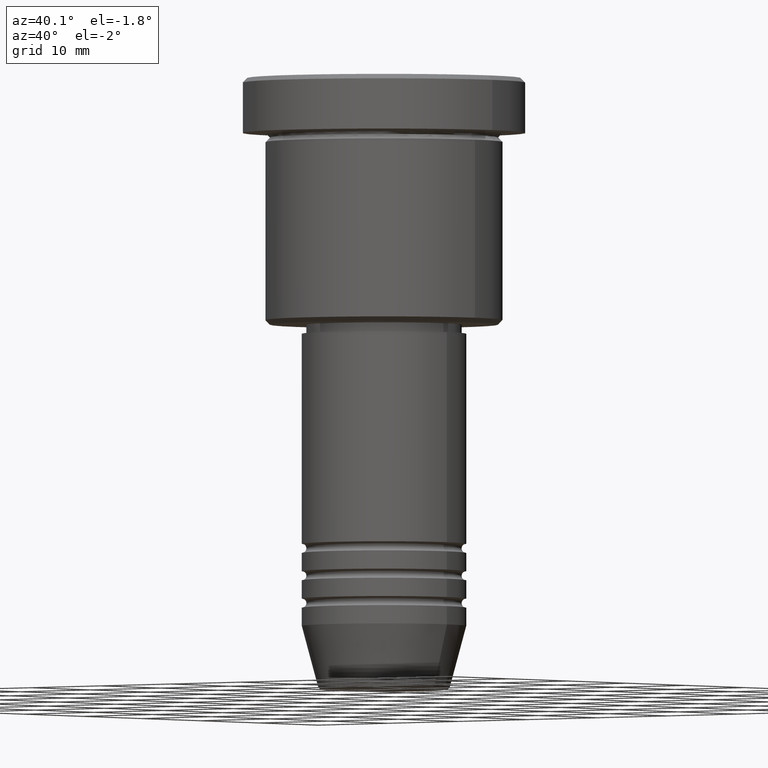
[diagram: clean part render]
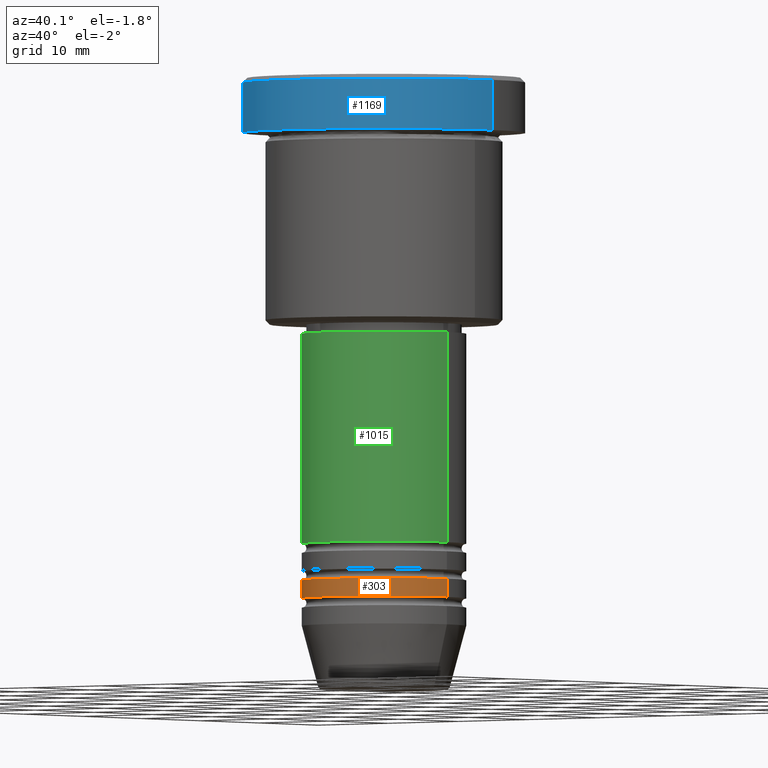
[diagram: same view with three faces highlighted in distinct colors, each labeled with its STEP entity id]
A machine part, auxiliary view with three faces highlighted in distinct colors.
Their STEP definitions:

[orange] entity #303 — the highlighted cylindrical surface (partial cylindrical patch) has radius 9 mm, axis along (-0, -0, 1).
#13 = DIRECTION ( 'NONE',  ( -0.000000000000000000, -0.000000000000000000, 1.000000000000000000 ) ) ;
#38 = CARTESIAN_POINT ( 'NONE',  ( 9.000000000000000000, 0.000000000000000000, -56.99999999999997868 ) ) ;
#57 = VECTOR ( 'NONE', #216, 1000.000000000000000 ) ;
#69 = CARTESIAN_POINT ( 'NONE',  ( 0.000000000000000000, 0.000000000000000000, -54.99999999999997868 ) ) ;
#154 = CARTESIAN_POINT ( 'NONE',  ( -9.000000000000000000, 1.102182119232617714E-15, -56.99999999999997868 ) ) ;
#156 = DIRECTION ( 'NONE',  ( 1.000000000000000000, 0.000000000000000000, 0.000000000000000000 ) ) ;
#216 = DIRECTION ( 'NONE',  ( -0.000000000000000000, -0.000000000000000000, 1.000000000000000000 ) ) ;
#242 = AXIS2_PLACEMENT_3D ( 'NONE', #731, #545, #894 ) ;
#249 = CARTESIAN_POINT ( 'NONE',  ( 9.000000000000000000, 0.000000000000000000, -54.99999999999997868 ) ) ;
#299 = CIRCLE ( 'NONE', #916, 9.000000000000000000 ) ;
#303 = ADVANCED_FACE ( 'NONE', ( #617 ), #526, .T. ) ;
#374 = DIRECTION ( 'NONE',  ( 1.000000000000000000, 0.000000000000000000, 0.000000000000000000 ) ) ;
#425 = EDGE_CURVE ( 'NONE', #751, #1172, #639, .T. ) ;
#510 = CARTESIAN_POINT ( 'NONE',  ( -9.000000000000000000, 1.102182119232617714E-15, 0.000000000000000000 ) ) ;
#526 = CYLINDRICAL_SURFACE ( 'NONE', #242, 9.000000000000000000 ) ;
#542 = ORIENTED_EDGE ( 'NONE', *, *, #425, .T. ) ;
#545 = DIRECTION ( 'NONE',  ( -0.000000000000000000, -0.000000000000000000, 1.000000000000000000 ) ) ;
#546 = ORIENTED_EDGE ( 'NONE', *, *, #556, .F. ) ;
#555 = DIRECTION ( 'NONE',  ( -0.000000000000000000, -0.000000000000000000, 1.000000000000000000 ) ) ;
#556 = EDGE_CURVE ( 'NONE', #1152, #920, #1055, .T. ) ;
#609 = EDGE_CURVE ( 'NONE', #920, #1172, #674, .T. ) ;
#617 = FACE_OUTER_BOUND ( 'NONE', #661, .T. ) ;
#639 = LINE ( 'NONE', #810, #1044 ) ;
#660 = EDGE_CURVE ( 'NONE', #1152, #751, #299, .T. ) ;
#661 = EDGE_LOOP ( 'NONE', ( #546, #1057, #542, #1170 ) ) ;
#674 = CIRCLE ( 'NONE', #938, 9.000000000000000000 ) ;
#731 = CARTESIAN_POINT ( 'NONE',  ( 0.000000000000000000, 0.000000000000000000, 0.000000000000000000 ) ) ;
#751 = VERTEX_POINT ( 'NONE', #38 ) ;
#810 = CARTESIAN_POINT ( 'NONE',  ( 9.000000000000000000, 0.000000000000000000, 0.000000000000000000 ) ) ;
#894 = DIRECTION ( 'NONE',  ( 1.000000000000000000, 0.000000000000000000, 0.000000000000000000 ) ) ;
#916 = AXIS2_PLACEMENT_3D ( 'NONE', #1010, #13, #374 ) ;
#920 = VERTEX_POINT ( 'NONE', #1096 ) ;
#938 = AXIS2_PLACEMENT_3D ( 'NONE', #69, #555, #156 ) ;
#1010 = CARTESIAN_POINT ( 'NONE',  ( 0.000000000000000000, 0.000000000000000000, -56.99999999999997868 ) ) ;
#1044 = VECTOR ( 'NONE', #1066, 1000.000000000000000 ) ;
#1055 = LINE ( 'NONE', #510, #57 ) ;
#1057 = ORIENTED_EDGE ( 'NONE', *, *, #660, .T. ) ;
#1066 = DIRECTION ( 'NONE',  ( -0.000000000000000000, -0.000000000000000000, 1.000000000000000000 ) ) ;
#1096 = CARTESIAN_POINT ( 'NONE',  ( -9.000000000000000000, 1.102182119232617714E-15, -54.99999999999997868 ) ) ;
#1152 = VERTEX_POINT ( 'NONE', #154 ) ;
#1170 = ORIENTED_EDGE ( 'NONE', *, *, #609, .F. ) ;
#1172 = VERTEX_POINT ( 'NONE', #249 ) ;

[blue] entity #1169 — the highlighted cylindrical surface (partial cylindrical patch) has radius 15.5 mm, axis along (-0, -0, 1).
#14 = VERTEX_POINT ( 'NONE', #1018 ) ;
#111 = EDGE_CURVE ( 'NONE', #926, #14, #725, .T. ) ;
#182 = CARTESIAN_POINT ( 'NONE',  ( 15.50000000000000000, 0.000000000000000000, -0.5000000000000057732 ) ) ;
#197 = EDGE_CURVE ( 'NONE', #1042, #926, #603, .T. ) ;
#219 = ORIENTED_EDGE ( 'NONE', *, *, #220, .F. ) ;
#220 = EDGE_CURVE ( 'NONE', #734, #14, #1138, .T. ) ;
#225 = FACE_OUTER_BOUND ( 'NONE', #565, .T. ) ;
#238 = DIRECTION ( 'NONE',  ( -0.000000000000000000, -0.000000000000000000, 1.000000000000000000 ) ) ;
#257 = DIRECTION ( 'NONE',  ( 1.000000000000000000, 0.000000000000000000, 0.000000000000000000 ) ) ;
#308 = CARTESIAN_POINT ( 'NONE',  ( 0.000000000000000000, 0.000000000000000000, -0.5000000000000057732 ) ) ;
#328 = DIRECTION ( 'NONE',  ( -0.000000000000000000, -0.000000000000000000, 1.000000000000000000 ) ) ;
#335 = CYLINDRICAL_SURFACE ( 'NONE', #799, 15.50000000000000000 ) ;
#385 = ORIENTED_EDGE ( 'NONE', *, *, #197, .T. ) ;
#414 = DIRECTION ( 'NONE',  ( -0.000000000000000000, -0.000000000000000000, 1.000000000000000000 ) ) ;
#422 = DIRECTION ( 'NONE',  ( 0.000000000000000000, 0.000000000000000000, -1.000000000000000000 ) ) ;
#477 = VECTOR ( 'NONE', #414, 1000.000000000000000 ) ;
#494 = CARTESIAN_POINT ( 'NONE',  ( 15.50000000000000000, 0.000000000000000000, 0.000000000000000000 ) ) ;
#565 = EDGE_LOOP ( 'NONE', ( #219, #765, #385, #655 ) ) ;
#603 = LINE ( 'NONE', #494, #477 ) ;
#655 = ORIENTED_EDGE ( 'NONE', *, *, #111, .T. ) ;
#662 = CARTESIAN_POINT ( 'NONE',  ( -15.50000000000000000, 1.898202538678397557E-15, -5.999999999999995559 ) ) ;
#672 = AXIS2_PLACEMENT_3D ( 'NONE', #1085, #1077, #257 ) ;
#681 = CARTESIAN_POINT ( 'NONE',  ( -15.50000000000000000, 1.898202538678397557E-15, 0.000000000000000000 ) ) ;
#725 = CIRCLE ( 'NONE', #883, 15.50000000000000000 ) ;
#734 = VERTEX_POINT ( 'NONE', #662 ) ;
#746 = CIRCLE ( 'NONE', #672, 15.50000000000000000 ) ;
#765 = ORIENTED_EDGE ( 'NONE', *, *, #905, .T. ) ;
#799 = AXIS2_PLACEMENT_3D ( 'NONE', #1048, #328, #950 ) ;
#883 = AXIS2_PLACEMENT_3D ( 'NONE', #308, #422, #890 ) ;
#890 = DIRECTION ( 'NONE',  ( 1.000000000000000000, 0.000000000000000000, 0.000000000000000000 ) ) ;
#905 = EDGE_CURVE ( 'NONE', #734, #1042, #746, .T. ) ;
#926 = VERTEX_POINT ( 'NONE', #182 ) ;
#930 = CARTESIAN_POINT ( 'NONE',  ( 15.50000000000000000, 0.000000000000000000, -5.999999999999995559 ) ) ;
#950 = DIRECTION ( 'NONE',  ( 1.000000000000000000, 0.000000000000000000, 0.000000000000000000 ) ) ;
#1018 = CARTESIAN_POINT ( 'NONE',  ( -15.50000000000000000, 1.898202538678397557E-15, -0.5000000000000057732 ) ) ;
#1042 = VERTEX_POINT ( 'NONE', #930 ) ;
#1048 = CARTESIAN_POINT ( 'NONE',  ( 0.000000000000000000, 0.000000000000000000, 0.000000000000000000 ) ) ;
#1077 = DIRECTION ( 'NONE',  ( -0.000000000000000000, -0.000000000000000000, 1.000000000000000000 ) ) ;
#1085 = CARTESIAN_POINT ( 'NONE',  ( 0.000000000000000000, 0.000000000000000000, -5.999999999999995559 ) ) ;
#1127 = VECTOR ( 'NONE', #238, 1000.000000000000000 ) ;
#1138 = LINE ( 'NONE', #681, #1127 ) ;
#1169 = ADVANCED_FACE ( 'NONE', ( #225 ), #335, .T. ) ;

[green] entity #1015 — the highlighted cylindrical surface (partial cylindrical patch) has radius 9 mm, axis along (-0, -0, 1).
#23 = ORIENTED_EDGE ( 'NONE', *, *, #618, .F. ) ;
#60 = AXIS2_PLACEMENT_3D ( 'NONE', #121, #1012, #848 ) ;
#63 = EDGE_CURVE ( 'NONE', #539, #713, #1122, .T. ) ;
#106 = VERTEX_POINT ( 'NONE', #949 ) ;
#116 = VECTOR ( 'NONE', #742, 1000.000000000000000 ) ;
#121 = CARTESIAN_POINT ( 'NONE',  ( 0.000000000000000000, 0.000000000000000000, 0.000000000000000000 ) ) ;
#146 = EDGE_CURVE ( 'NONE', #106, #539, #188, .T. ) ;
#152 = AXIS2_PLACEMENT_3D ( 'NONE', #675, #952, #561 ) ;
#188 = CIRCLE ( 'NONE', #515, 9.000000000000000000 ) ;
#205 = FACE_OUTER_BOUND ( 'NONE', #984, .T. ) ;
#222 = CARTESIAN_POINT ( 'NONE',  ( 9.000000000000000000, 0.000000000000000000, -50.99999999999997868 ) ) ;
#361 = CIRCLE ( 'NONE', #152, 9.000000000000000000 ) ;
#369 = CARTESIAN_POINT ( 'NONE',  ( -9.000000000000000000, 1.102182119232617714E-15, 0.000000000000000000 ) ) ;
#407 = DIRECTION ( 'NONE',  ( 1.000000000000000000, 0.000000000000000000, 0.000000000000000000 ) ) ;
#421 = CARTESIAN_POINT ( 'NONE',  ( -9.000000000000000000, 1.102182119232617714E-15, -27.99999999999999645 ) ) ;
#430 = ORIENTED_EDGE ( 'NONE', *, *, #63, .T. ) ;
#509 = VERTEX_POINT ( 'NONE', #421 ) ;
#515 = AXIS2_PLACEMENT_3D ( 'NONE', #1131, #1033, #407 ) ;
#519 = DIRECTION ( 'NONE',  ( -0.000000000000000000, -0.000000000000000000, 1.000000000000000000 ) ) ;
#539 = VERTEX_POINT ( 'NONE', #222 ) ;
#561 = DIRECTION ( 'NONE',  ( 1.000000000000000000, 0.000000000000000000, 0.000000000000000000 ) ) ;
#618 = EDGE_CURVE ( 'NONE', #106, #509, #827, .T. ) ;
#653 = CYLINDRICAL_SURFACE ( 'NONE', #60, 9.000000000000000000 ) ;
#673 = CARTESIAN_POINT ( 'NONE',  ( 9.000000000000000000, 0.000000000000000000, 0.000000000000000000 ) ) ;
#675 = CARTESIAN_POINT ( 'NONE',  ( 0.000000000000000000, 0.000000000000000000, -27.99999999999999645 ) ) ;
#708 = VECTOR ( 'NONE', #519, 1000.000000000000000 ) ;
#713 = VERTEX_POINT ( 'NONE', #941 ) ;
#718 = EDGE_CURVE ( 'NONE', #509, #713, #361, .T. ) ;
#742 = DIRECTION ( 'NONE',  ( -0.000000000000000000, -0.000000000000000000, 1.000000000000000000 ) ) ;
#827 = LINE ( 'NONE', #369, #708 ) ;
#848 = DIRECTION ( 'NONE',  ( 1.000000000000000000, 0.000000000000000000, 0.000000000000000000 ) ) ;
#909 = ORIENTED_EDGE ( 'NONE', *, *, #146, .T. ) ;
#918 = ORIENTED_EDGE ( 'NONE', *, *, #718, .F. ) ;
#941 = CARTESIAN_POINT ( 'NONE',  ( 9.000000000000000000, 0.000000000000000000, -27.99999999999999645 ) ) ;
#949 = CARTESIAN_POINT ( 'NONE',  ( -9.000000000000000000, 1.102182119232617714E-15, -50.99999999999997868 ) ) ;
#952 = DIRECTION ( 'NONE',  ( -0.000000000000000000, -0.000000000000000000, 1.000000000000000000 ) ) ;
#984 = EDGE_LOOP ( 'NONE', ( #23, #909, #430, #918 ) ) ;
#1012 = DIRECTION ( 'NONE',  ( -0.000000000000000000, -0.000000000000000000, 1.000000000000000000 ) ) ;
#1015 = ADVANCED_FACE ( 'NONE', ( #205 ), #653, .T. ) ;
#1033 = DIRECTION ( 'NONE',  ( -0.000000000000000000, -0.000000000000000000, 1.000000000000000000 ) ) ;
#1122 = LINE ( 'NONE', #673, #116 ) ;
#1131 = CARTESIAN_POINT ( 'NONE',  ( 0.000000000000000000, 0.000000000000000000, -50.99999999999997868 ) ) ;